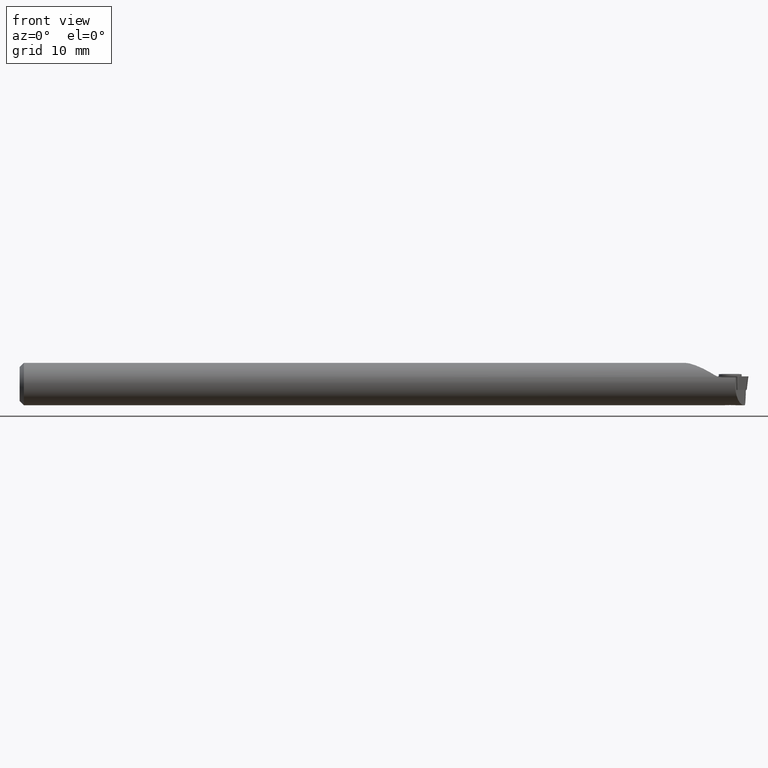
[diagram: clean part render]
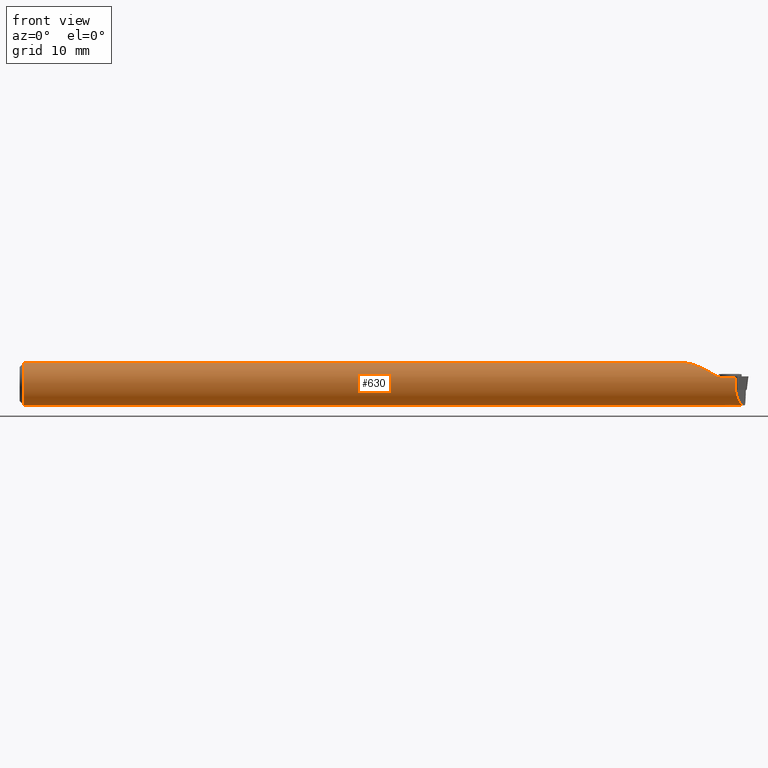
[diagram: same view with one face highlighted and labeled with its STEP entity id]
A machine part, front view. The second image highlights one B-rep face of the part: STEP entity #630.
In plain terms, the highlighted cylindrical surface (edge-blend (fillet) strip) has radius 2.5 mm, axis along (-1, -0, -0).
Its self-contained STEP definition (entity closure, byte-faithful):
#16 = EDGE_LOOP ( 'NONE', ( #2584, #498, #562, #323, #1607, #3164, #2093, #1948, #361 ) ) ;
#68 = CARTESIAN_POINT ( 'NONE',  ( 80.57603412662921000, -1.858327576004881000, 1.953408951881715300 ) ) ;
#120 = VERTEX_POINT ( 'NONE', #1537 ) ;
#247 = EDGE_CURVE ( 'NONE', #3162, #1324, #2939, .T. ) ;
#262 = CARTESIAN_POINT ( 'NONE',  ( 83.40358059621524900, -0.1554402796660708800, -2.495608101310341700 ) ) ;
#278 = CARTESIAN_POINT ( 'NONE',  ( 84.47695934550733900, -2.368543856465386900, 0.8000000000000000400 ) ) ;
#323 = ORIENTED_EDGE ( 'NONE', *, *, #1115, .T. ) ;
#361 = ORIENTED_EDGE ( 'NONE', *, *, #2057, .T. ) ;
#426 = DIRECTION ( 'NONE',  ( -1.000000000000000000, -0.0000000000000000000, -0.0000000000000000000 ) ) ;
#460 = VERTEX_POINT ( 'NONE', #2802 ) ;
#485 = DIRECTION ( 'NONE',  ( -1.000000000000000000, -0.0000000000000000000, -0.0000000000000000000 ) ) ;
#498 = ORIENTED_EDGE ( 'NONE', *, *, #3577, .T. ) ;
#553 = CARTESIAN_POINT ( 'NONE',  ( 83.72452220464374800, -0.2740628462233600200, -2.484932505448502300 ) ) ;
#562 = ORIENTED_EDGE ( 'NONE', *, *, #247, .T. ) ;
#597 = VERTEX_POINT ( 'NONE', #1140 ) ;
#630 = ADVANCED_FACE ( 'NONE', ( #3283 ), #3177, .T. ) ;
#636 = VECTOR ( 'NONE', #3381, 1000.000000000000000 ) ;
#850 = CARTESIAN_POINT ( 'NONE',  ( 84.06508908921983900, -0.2495444486457359900, -2.487962418843244100 ) ) ;
#885 = VERTEX_POINT ( 'NONE', #1795 ) ;
#906 = LINE ( 'NONE', #2781, #3105 ) ;
#921 =( BOUNDED_CURVE ( )  B_SPLINE_CURVE ( 3, ( #3150, #3445, #2001, #278 ),
 .UNSPECIFIED., .F., .T. ) 
 B_SPLINE_CURVE_WITH_KNOTS ( ( 4, 4 ),
 ( 4.712388980384689700, 6.608914794474217500 ),
 .UNSPECIFIED. ) 
 CURVE ( )  GEOMETRIC_REPRESENTATION_ITEM ( )  RATIONAL_B_SPLINE_CURVE ( ( 1.000000000000000000, 0.7220634596563529900, 0.7220634596563529900, 1.000000000000000000 ) ) 
 REPRESENTATION_ITEM ( '' )  );
#954 = CARTESIAN_POINT ( 'NONE',  ( 82.81965540551848900, -2.368543856465394400, 0.8000000000000000400 ) ) ;
#1059 = EDGE_CURVE ( 'NONE', #3356, #2659, #1493, .T. ) ;
#1072 = CARTESIAN_POINT ( 'NONE',  ( -13.10767084393626900, -2.368543856465394400, 0.8000000000000000400 ) ) ;
#1115 = EDGE_CURVE ( 'NONE', #1324, #2659, #3265, .T. ) ;
#1132 = CARTESIAN_POINT ( 'NONE',  ( 84.36549626634504800, -0.08625603185345386000, -2.499999999999992900 ) ) ;
#1140 = CARTESIAN_POINT ( 'NONE',  ( 83.23507933993127500, -3.240022594917346800E-015, -2.499999999999992900 ) ) ;
#1170 = EDGE_CURVE ( 'NONE', #597, #460, #2155, .T. ) ;
#1211 = CARTESIAN_POINT ( 'NONE',  ( 78.49127771353396100, 0.0000000000000000000, 2.499999999999992900 ) ) ;
#1218 = B_SPLINE_CURVE_WITH_KNOTS ( 'NONE', 3,
 ( #1705, #3429, #262, #2269, #553, #2567, #850, #2864, #1132, #3143 ),
 .UNSPECIFIED., .F., .F.,
 ( 4, 2, 2, 2, 4 ),
 ( 1.302527673686484200E-018, 0.0003398084476184510800, 0.0006796168952369008500, 0.001019425342855350700, 0.001359233790473800400 ),
 .UNSPECIFIED. ) ;
#1239 = CARTESIAN_POINT ( 'NONE',  ( 82.68006099297483000, -2.368543856465392200, 0.7999999999999994900 ) ) ;
#1319 = CARTESIAN_POINT ( 'NONE',  ( 82.04160658959442300, -2.276003813669373400, 1.034314575050762700 ) ) ;
#1324 = VERTEX_POINT ( 'NONE', #1983 ) ;
#1493 =( BOUNDED_CURVE ( )  B_SPLINE_CURVE ( 3, ( #1211, #1502, #68, #2078 ),
 .UNSPECIFIED., .F., .T. ) 
 B_SPLINE_CURVE_WITH_KNOTS ( ( 4, 4 ),
 ( 0.5417530075268665000, 1.686006546418953500 ),
 .UNSPECIFIED. ) 
 CURVE ( )  GEOMETRIC_REPRESENTATION_ITEM ( )  RATIONAL_B_SPLINE_CURVE ( ( 1.000000000000000000, 0.8938342660355620400, 0.8938342660355620400, 1.000000000000000000 ) ) 
 REPRESENTATION_ITEM ( '' )  );
#1502 = CARTESIAN_POINT ( 'NONE',  ( 79.25202697714306100, -1.009548370823228700, 2.499999999999992900 ) ) ;
#1533 = CARTESIAN_POINT ( 'NONE',  ( 82.27948548932433000, -2.331081832455355500, 0.9044120978155063600 ) ) ;
#1537 = CARTESIAN_POINT ( 'NONE',  ( 84.44074706595085900, 2.306840888391100100E-017, -2.499999999999992900 ) ) ;
#1579 = VECTOR ( 'NONE', #2680, 1000.000000000000000 ) ;
#1607 = ORIENTED_EDGE ( 'NONE', *, *, #1059, .F. ) ;
#1615 = CIRCLE ( 'NONE', #3067, 2.499999999999988000 ) ;
#1705 = CARTESIAN_POINT ( 'NONE',  ( 83.23507933993127500, -3.240022594917346800E-015, -2.499999999999992900 ) ) ;
#1795 = CARTESIAN_POINT ( 'NONE',  ( 85.48234656366578600, 3.061616997868373800E-016, -2.499999999999992900 ) ) ;
#1821 = CARTESIAN_POINT ( 'NONE',  ( 82.04160658959442300, -2.276003813669373400, 1.034314575050762700 ) ) ;
#1851 = VERTEX_POINT ( 'NONE', #3636 ) ;
#1946 = EDGE_CURVE ( 'NONE', #885, #120, #906, .T. ) ;
#1948 = ORIENTED_EDGE ( 'NONE', *, *, #1170, .F. ) ;
#1983 = CARTESIAN_POINT ( 'NONE',  ( 82.81965540551848900, -2.368543856465394400, 0.8000000000000000400 ) ) ;
#2001 = CARTESIAN_POINT ( 'NONE',  ( 84.22224860597710000, -2.968604754787906400, -0.9765881927836109800 ) ) ;
#2036 = DIRECTION ( 'NONE',  ( -1.000000000000000000, -0.0000000000000000000, -0.0000000000000000000 ) ) ;
#2057 = EDGE_CURVE ( 'NONE', #597, #120, #1218, .T. ) ;
#2078 = CARTESIAN_POINT ( 'NONE',  ( 82.04160658959442300, -2.276003813669373400, 1.034314575050762700 ) ) ;
#2093 = ORIENTED_EDGE ( 'NONE', *, *, #2723, .F. ) ;
#2118 = CARTESIAN_POINT ( 'NONE',  ( 78.49127771353396100, 0.0000000000000000000, 2.499999999999992900 ) ) ;
#2155 = LINE ( 'NONE', #2435, #3693 ) ;
#2204 = CARTESIAN_POINT ( 'NONE',  ( 0.5000000000000004400, 0.0000000000000000000, 0.0000000000000000000 ) ) ;
#2216 = AXIS2_PLACEMENT_3D ( 'NONE', #2905, #2036, #2300 ) ;
#2269 = CARTESIAN_POINT ( 'NONE',  ( 83.61035648517014400, -0.2493958554933584600, -2.487975719964165700 ) ) ;
#2300 = DIRECTION ( 'NONE',  ( 0.0000000000000000000, 0.0000000000000000000, 1.000000000000000000 ) ) ;
#2325 = LINE ( 'NONE', #3539, #1579 ) ;
#2435 = CARTESIAN_POINT ( 'NONE',  ( -13.10767084393626900, 3.061616997868373800E-016, -2.499999999999992900 ) ) ;
#2499 = DIRECTION ( 'NONE',  ( 0.0000000000000000000, 0.0000000000000000000, 1.000000000000000000 ) ) ;
#2525 = EDGE_CURVE ( 'NONE', #3356, #1851, #2325, .T. ) ;
#2567 = CARTESIAN_POINT ( 'NONE',  ( 83.95105513755068200, -0.2740981094285721000, -2.484928616021455200 ) ) ;
#2584 = ORIENTED_EDGE ( 'NONE', *, *, #1946, .F. ) ;
#2659 = VERTEX_POINT ( 'NONE', #1319 ) ;
#2680 = DIRECTION ( 'NONE',  ( -1.000000000000000000, -0.0000000000000000000, -0.0000000000000000000 ) ) ;
#2723 = EDGE_CURVE ( 'NONE', #460, #1851, #1615, .T. ) ;
#2781 = CARTESIAN_POINT ( 'NONE',  ( -13.10767084393626900, 3.061616997868373800E-016, -2.499999999999992900 ) ) ;
#2802 = CARTESIAN_POINT ( 'NONE',  ( 0.5000000000000004400, 3.061616997868370800E-016, -2.499999999999988000 ) ) ;
#2864 = CARTESIAN_POINT ( 'NONE',  ( 84.27234191723475500, -0.1554210268311310200, -2.495610893918558400 ) ) ;
#2905 = CARTESIAN_POINT ( 'NONE',  ( -13.10767084393626900, 0.0000000000000000000, 0.0000000000000000000 ) ) ;
#2939 = LINE ( 'NONE', #1072, #636 ) ;
#3067 = AXIS2_PLACEMENT_3D ( 'NONE', #2204, #485, #2499 ) ;
#3080 = DIRECTION ( 'NONE',  ( -1.000000000000000000, -0.0000000000000000000, -0.0000000000000000000 ) ) ;
#3105 = VECTOR ( 'NONE', #3080, 1000.000000000000000 ) ;
#3143 = CARTESIAN_POINT ( 'NONE',  ( 84.44074706595085900, 2.306840888391100100E-017, -2.499999999999992900 ) ) ;
#3150 = CARTESIAN_POINT ( 'NONE',  ( 85.48234656366578600, 3.061616997868373800E-016, -2.499999999999992900 ) ) ;
#3162 = VERTEX_POINT ( 'NONE', #3464 ) ;
#3164 = ORIENTED_EDGE ( 'NONE', *, *, #2525, .T. ) ;
#3177 = CYLINDRICAL_SURFACE ( 'NONE', #2216, 2.499999999999992900 ) ;
#3255 = CARTESIAN_POINT ( 'NONE',  ( 82.54405353453387300, -2.361221609122804700, 0.8225182459313463700 ) ) ;
#3265 = B_SPLINE_CURVE_WITH_KNOTS ( 'NONE', 3,
 ( #954, #1239, #3255, #1533, #3557, #1821 ),
 .UNSPECIFIED., .F., .F.,
 ( 4, 2, 4 ),
 ( 0.0000000000000000000, 0.0004134060870607516800, 0.0008268121741215033600 ),
 .UNSPECIFIED. ) ;
#3283 = FACE_OUTER_BOUND ( 'NONE', #16, .T. ) ;
#3356 = VERTEX_POINT ( 'NONE', #2118 ) ;
#3381 = DIRECTION ( 'NONE',  ( -1.000000000000000000, -0.0000000000000000000, -0.0000000000000000000 ) ) ;
#3429 = CARTESIAN_POINT ( 'NONE',  ( 83.31062761895026400, -0.08659701685126737500, -2.499999999999992900 ) ) ;
#3445 = CARTESIAN_POINT ( 'NONE',  ( 84.68637550263376600, -1.875190307257841300, -2.499999999999992900 ) ) ;
#3464 = CARTESIAN_POINT ( 'NONE',  ( 84.47695934550733900, -2.368543856465386900, 0.8000000000000000400 ) ) ;
#3539 = CARTESIAN_POINT ( 'NONE',  ( -13.10767084393626900, 0.0000000000000000000, 2.499999999999992900 ) ) ;
#3557 = CARTESIAN_POINT ( 'NONE',  ( 82.15636093824380700, -2.308707870146073000, 0.9623494697927514900 ) ) ;
#3577 = EDGE_CURVE ( 'NONE', #885, #3162, #921, .T. ) ;
#3636 = CARTESIAN_POINT ( 'NONE',  ( 0.5000000000000004400, 0.0000000000000000000, 2.499999999999988000 ) ) ;
#3693 = VECTOR ( 'NONE', #426, 1000.000000000000000 ) ;